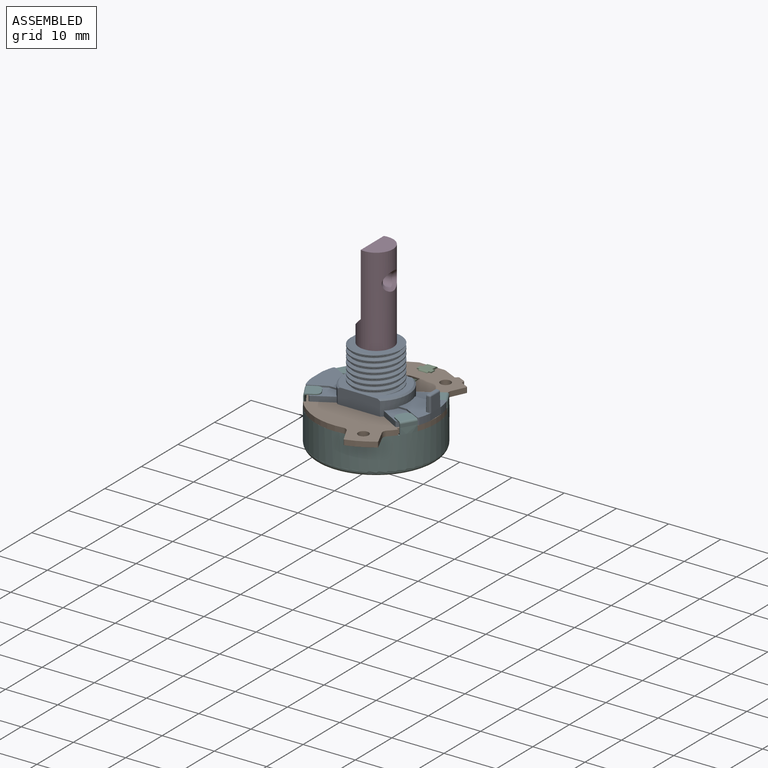
[diagram: assembled view]
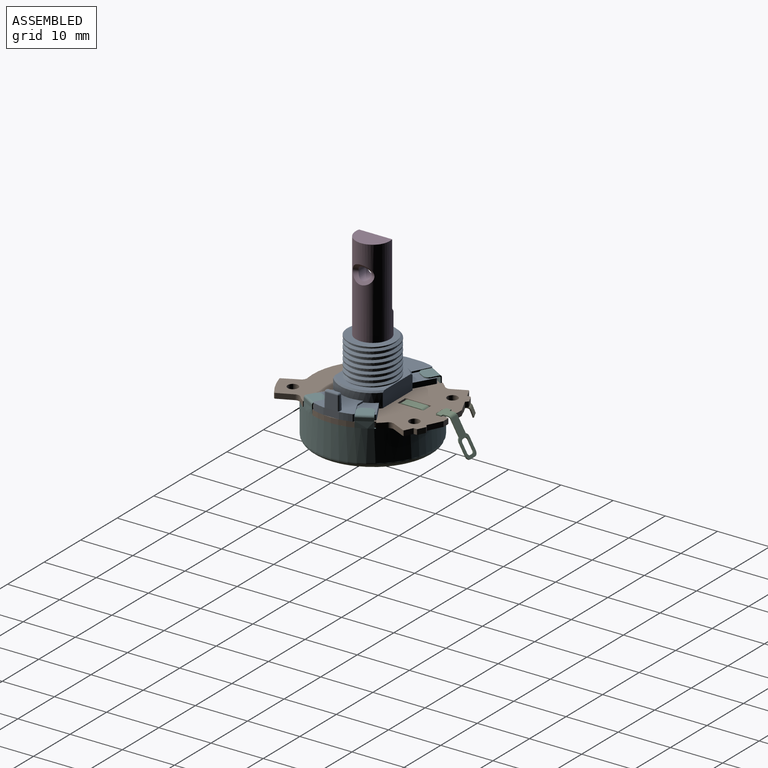
[diagram: assembled view, second angle]
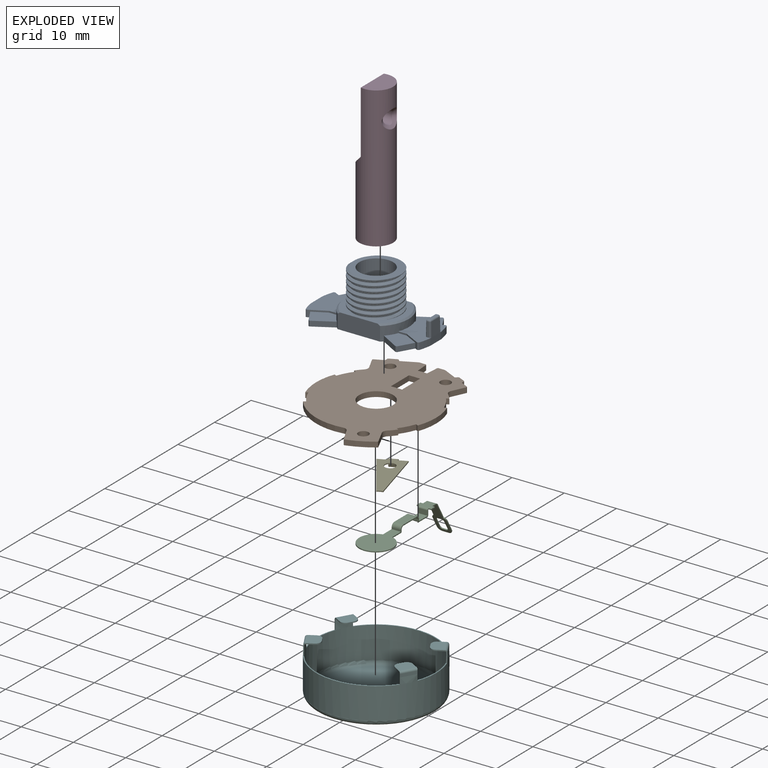
[diagram: exploded view]
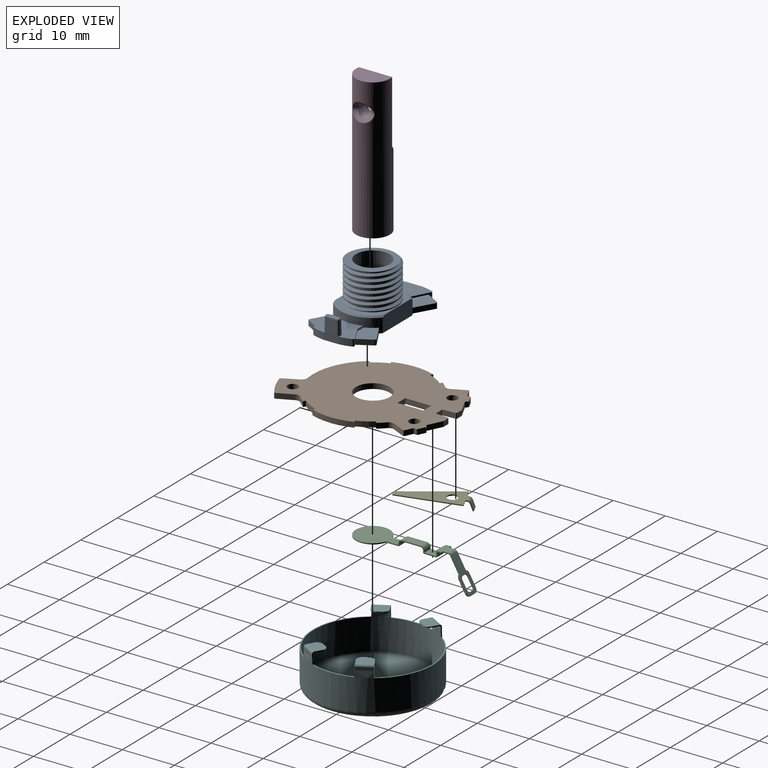
[diagram: exploded view, second angle]
ASSEMBLY  parts=6 mates=5
PART A: 71 faces, bbox 23.1x13.2x10.8 mm
  f0: plane 7.81x5.58mm, normal (0,0,1), area 27.8mm2, adj f27,f28,f29,f30,f31,f35,f36,f37
  f1: plane 12.16x9.76mm, normal (0,0,1), area 35.8mm2, adj f44,f45,f46,f47,f48,f50,f51,f52
  f2: plane 5.57x4.21mm, normal (0,0,1), area 13.8mm2, adj f9,f10,f11,f14,f17,f22,f23
  f3: plane 5.57x4.21mm, normal (0,0,1), area 13.8mm2, adj f4,f5,f12,f15,f18,f19,f23
  f4: plane 2.66x1.53mm, normal (-0.87,0.5,0), area 3.1mm2, adj f3,f5,f13,f19
  f5: plane 2.97x1.58mm, normal (0.47,0.88,0), area 1.5mm2, adj f3,f4,f13,f16,f18,f21
  f6: cylinder r=11.5mm len=2.21mm, axis (0,0,-1), area 3mm2, adj f7,f13,f16,f21
  f7: plane 2.97x1.3mm, normal (-1,0,0), area 3.9mm2, adj f6,f8,f13,f16
  f8: cylinder r=11.5mm len=2.21mm, axis (0,0,-1), area 3mm2, adj f7,f13,f16,f20
  f9: plane 2.97x1.58mm, normal (0.47,-0.88,0), area 1.5mm2, adj f2,f10,f13,f16,f17,f20
  f10: plane 2.66x1.53mm, normal (-0.87,-0.5,0), area 3.1mm2, adj f2,f9,f13,f22
  f11: plane 3.62x2.09mm, normal (0.5,-0.87,0), area 4.2mm2, adj f2,f13,f22,f23
  f12: plane 3.62x2.09mm, normal (0.5,0.87,0), area 4.2mm2, adj f3,f13,f19,f23
  f13: plane 22.81x12.93mm, normal (0,0,-1), area 189.3mm2, adj f4,f5,f6,f7,f8,f9,f10,f11
  f14: plane 1.53x0.3mm, normal (0,-1,0), area 0.5mm2, adj f2,f16,f17,f23
  f15: plane 1.53x0.3mm, normal (0,1,0), area 0.5mm2, adj f3,f16,f18,f23
  f16: plane 7.8x5.57mm, normal (0,0,1), area 30.6mm2, adj f5,f6,f7,f8,f9,f14,f15,f17
  f17: cylinder r=0.3mm len=0.3mm, axis (0,0,-1), area 0mm2, adj f2,f9,f14,f16
  f18: cylinder r=0.3mm len=0.3mm, axis (0,0,1), area 0mm2, adj f3,f5,f15,f16
  f19: cylinder r=0.3mm len=1mm, axis (0,0,1), area 0.5mm2, adj f3,f4,f12,f13
  f20: cylinder r=0.3mm len=1.3mm, axis (0,0,-1), area 0.7mm2, adj f8,f9,f13,f16
  f21: cylinder r=0.3mm len=1.3mm, axis (0,0,-1), area 0.7mm2, adj f5,f6,f13,f16
  f22: cylinder r=0.3mm len=1mm, axis (0,0,1), area 0.5mm2, adj f2,f10,f11,f13
  f23: cylinder r=6.25mm len=9.5mm, axis (0,0,-1), area 18.2mm2, adj f2,f3,f11,f12,f13,f14,f15,f16
  f24: plane 5.57x4.21mm, normal (0,0,1), area 13.8mm2, adj f31,f32,f33,f35,f37,f42,f43
  f25: plane 5.57x4.21mm, normal (0,0,1), area 13.8mm2, adj f26,f27,f34,f36,f38,f39,f43
  f26: plane 2.66x1.53mm, normal (0.87,0.5,0), area 3.1mm2, adj f13,f25,f27,f39
  f27: plane 2.97x1.58mm, normal (-0.47,0.88,0), area 1.5mm2, adj f0,f13,f25,f26,f38,f41
  f28: cylinder r=11.5mm len=2.21mm, axis (0,0,-1), area 3mm2, adj f0,f13,f29,f41
  f29: plane 2.97x1.3mm, normal (1,0,0), area 3.9mm2, adj f0,f13,f28,f30,f54
  f30: cylinder r=11.5mm len=2.21mm, axis (0,0,-1), area 3mm2, adj f0,f13,f29,f40
  f31: plane 2.97x1.58mm, normal (-0.47,-0.88,0), area 1.5mm2, adj f0,f13,f24,f32,f37,f40
  f32: plane 2.66x1.53mm, normal (0.87,-0.5,0), area 3.1mm2, adj f13,f24,f31,f42
  f33: plane 3.62x2.09mm, normal (-0.5,-0.87,0), area 4.2mm2, adj f13,f24,f42,f43
  f34: plane 3.62x2.09mm, normal (-0.5,0.87,0), area 4.2mm2, adj f13,f25,f39,f43
  f35: plane 1.53x0.3mm, normal (0,-1,0), area 0.5mm2, adj f0,f24,f37,f43
  f36: plane 1.53x0.3mm, normal (0,1,0), area 0.5mm2, adj f0,f25,f38,f43
  f37: cylinder r=0.3mm len=0.3mm, axis (0,0,-1), area 0mm2, adj f0,f24,f31,f35
  f38: cylinder r=0.3mm len=0.3mm, axis (0,0,1), area 0mm2, adj f0,f25,f27,f36
  f39: cylinder r=0.3mm len=1mm, axis (0,0,1), area 0.5mm2, adj f13,f25,f26,f34
  f40: cylinder r=0.3mm len=1.3mm, axis (0,0,-1), area 0.7mm2, adj f0,f13,f30,f31
  f41: cylinder r=0.3mm len=1.3mm, axis (0,0,-1), area 0.7mm2, adj f0,f13,f27,f28
  f42: cylinder r=0.3mm len=1mm, axis (0,0,1), area 0.5mm2, adj f13,f24,f32,f33
  f43: cylinder r=6.25mm len=9.5mm, axis (0,0,-1), area 18.2mm2, adj f0,f13,f24,f25,f33,f34,f35,f36
  f44: plane 8.14x3.01mm, normal (0,-1,0), area 24.2mm2, adj f1,f13,f23,f43,f46,f47
  f45: plane 8.14x3.01mm, normal (0,1,0), area 24.2mm2, adj f1,f13,f23,f43,f46,f47
  f46: cone r=5.95mm half-angle=45deg, axis (0,0,-1), area 4.6mm2, adj f1,f23,f44,f45
  f47: cone r=6.25mm half-angle=45deg, axis (0,0,-1), area 4.6mm2, adj f1,f43,f44,f45
  f48: cylinder r=4.75mm len=9.5mm, axis (0,0,1), area 32.1mm2, adj f1,f49,f50,f52
  f49: plane 9.29x9.26mm, normal (0,0,1), area 30.6mm2, adj f48,f50,f51,f52,f53
  f50: bspline ~11.39x9.87mm, area 114.4mm2, adj f1,f48,f49,f51
  f51: cylinder r=4.25mm len=8.5mm, axis (0,0,1), area 28.8mm2, adj f1,f49,f50,f52
  f52: bspline ~11.39x9.87mm, area 114.4mm2, adj f1,f48,f49,f51
  f53: cylinder r=3.25mm len=10mm, axis (0,0,-1), area 204.2mm2, adj f13,f49
  f54: plane 2.71x2.3mm, normal (1,0,0.02), area 6.1mm2, adj f29,f61,f67,f70
  f55: plane 2.71x0.4mm, normal (0,1,0.02), area 1mm2, adj f0,f64,f68,f70
  f56: plane 2.71x2.3mm, normal (-1,0,0.02), area 6.1mm2, adj f0,f59,f63,f64
  f57: plane 2.71x0.4mm, normal (0,-1,0.02), area 1mm2, adj f0,f59,f61,f62
  f58: plane 2.21x0.31mm, normal (0,0,1), area 0.7mm2, adj f62,f63,f67,f68
  f59: cylinder r=0.3mm len=2.71mm, axis (-0.02,-0.02,-1), area 1.3mm2, adj f0,f56,f57,f60
  f60: sphere r=0.3mm, area 0.1mm2, adj f59,f62,f63
  f61: cylinder r=0.3mm len=2.71mm, axis (0.02,-0.02,-1), area 1.3mm2, adj f0,f54,f57,f65
  f62: cylinder r=0.3mm len=0.31mm, axis (-1,0,0), area 0.1mm2, adj f57,f58,f60,f65
  f63: cylinder r=0.3mm len=2.21mm, axis (0,-1,0), area 1mm2, adj f56,f58,f60,f66
  f64: cylinder r=0.3mm len=2.71mm, axis (-0.02,0.02,-1), area 1.3mm2, adj f0,f55,f56,f66
  f65: sphere r=0.3mm, area 0.1mm2, adj f61,f62,f67
  f66: sphere r=0.3mm, area 0.2mm2, adj f63,f64,f68
  f67: cylinder r=0.3mm len=2.21mm, axis (0,-1,0), area 1mm2, adj f54,f58,f65,f69
  f68: cylinder r=0.3mm len=0.31mm, axis (-1,0,0), area 0.1mm2, adj f55,f58,f66,f69
  f69: sphere r=0.3mm, area 0.1mm2, adj f67,f68,f70
  f70: cylinder r=0.3mm len=2.71mm, axis (0.02,0.02,-1), area 1.3mm2, adj f0,f54,f55,f69
PART B: 64 faces, bbox 23x30.2x1 mm
  f0: plane 30.18x23mm, normal (0,0,1), area 440.1mm2, adj f2,f3,f4,f5,f6,f7,f8,f9
  f1: plane 30.18x23mm, normal (0,0,-1), area 440.1mm2, adj f2,f3,f4,f5,f6,f7,f8,f9
  f2: cylinder r=11.5mm len=8.06mm, axis (0,0,-1), area 8.2mm2, adj f0,f1,f56,f61
  f3: cylinder r=11.5mm len=8.06mm, axis (0,0,-1), area 8.2mm2, adj f0,f1,f53,f58
  f4: cylinder r=11.5mm len=1.32mm, axis (0,0,-1), area 1.8mm2, adj f0,f1,f47,f55
  f5: cylinder r=11.5mm len=1.19mm, axis (0,0,-1), area 1.6mm2, adj f0,f1,f49,f52
  f6: plane 4.95x1mm, normal (1,0,0), area 5mm2, adj f0,f1,f7,f34
  f7: plane 2.14x1mm, normal (0,-1,0), area 2.1mm2, adj f0,f1,f6,f8
  f8: plane 4.95x1mm, normal (-1,0,0), area 5mm2, adj f0,f1,f7,f34
  f9: plane 2.52x1.23mm, normal (-0.9,-0.44,0), area 2.8mm2, adj f0,f1,f40,f49
  f10: cylinder r=11.5mm len=10.77mm, axis (0,0,-1), area 12.2mm2, adj f0,f1,f48,f59
  f11: plane 2.85x1.45mm, normal (-0.89,-0.45,0), area 3.2mm2, adj f0,f1,f35,f48
  f12: cylinder r=15.5mm len=4.65mm, axis (0,0,-1), area 5.2mm2, adj f0,f1,f35,f36
  f13: plane 2.9x1.35mm, normal (0.91,0.42,0), area 3.2mm2, adj f0,f1,f36,f47
  f14: cylinder r=11.5mm len=1.32mm, axis (0,0,-1), area 1.8mm2, adj f0,f1,f50,f62
  f15: plane 2.5x1.17mm, normal (0.91,-0.42,0), area 2.8mm2, adj f0,f1,f41,f50
  f16: plane 1.35x1mm, normal (0.44,0.9,0), area 1.5mm2, adj f0,f1,f41,f42
  f17: plane 1x0.45mm, normal (1,-0.02,0), area 0.4mm2, adj f0,f1,f42,f43
  f18: plane 1.31x1mm, normal (0.43,0.91,0), area 1.4mm2, adj f0,f1,f43,f44
  f19: plane 1x0.33mm, normal (-0.63,0.78,0), area 0.4mm2, adj f0,f1,f44,f45
  f20: plane 2.67x1.3mm, normal (0.44,0.9,0), area 3mm2, adj f0,f1,f21,f45
  f21: plane 1.24x1mm, normal (0,1,0), area 1.2mm2, adj f0,f1,f20,f46
  f22: plane 2.44x1mm, normal (-1,0.07,0), area 2.4mm2, adj f0,f1,f23,f46
  f23: cylinder r=12.7mm len=1.77mm, axis (0,0,-1), area 1.8mm2, adj f0,f1,f22,f24
  f24: plane 2.44x1mm, normal (1,0.07,0), area 2.4mm2, adj f0,f1,f23,f37
  f25: plane 1.24x1mm, normal (0,1,0), area 1.2mm2, adj f0,f1,f26,f37
  f26: plane 2.78x1.36mm, normal (-0.44,0.9,0), area 3.1mm2, adj f0,f1,f25,f27
  f27: plane 1x0.43mm, normal (0.63,0.78,0), area 0.6mm2, adj f0,f1,f26,f38
  f28: plane 1.31x1mm, normal (-0.43,0.91,0), area 1.4mm2, adj f0,f1,f38,f39
  f29: plane 1x0.58mm, normal (-1,-0.02,0), area 0.6mm2, adj f0,f1,f33,f39
  f30: cylinder r=1mm len=2mm, axis (0,0,-1), area 6.3mm2, adj f0,f1
  f31: cylinder r=1mm len=2mm, axis (0,0,-1), area 6.3mm2, adj f0,f1
  f32: cylinder r=1mm len=2mm, axis (0,0,-1), area 6.3mm2, adj f0,f1
  f33: plane 1.68x1mm, normal (-0.44,0.9,0), area 1.9mm2, adj f0,f1,f29,f40
  f34: plane 2.14x1mm, normal (0,1,0), area 2.1mm2, adj f0,f1,f6,f8
  f35: cylinder r=0.2mm len=1mm, axis (0,0,-1), area 0.3mm2, adj f0,f1,f11,f12
  f36: cylinder r=0.2mm len=1mm, axis (0,0,-1), area 0.3mm2, adj f0,f1,f12,f13
  f37: cylinder r=0.2mm len=1mm, axis (0,0,-1), area 0.3mm2, adj f0,f1,f24,f25
  f38: cylinder r=0.2mm len=1mm, axis (0,0,-1), area 0.2mm2, adj f0,f1,f27,f28
  f39: cylinder r=0.2mm len=1mm, axis (0,0,-1), area 0.2mm2, adj f0,f1,f28,f29
  f40: cylinder r=0.2mm len=1mm, axis (0,0,1), area 0.3mm2, adj f0,f1,f9,f33
  f41: cylinder r=0.2mm len=1mm, axis (0,0,-1), area 0.3mm2, adj f0,f1,f15,f16
  f42: cylinder r=0.2mm len=1mm, axis (0,0,-1), area 0.2mm2, adj f0,f1,f16,f17
  f43: cylinder r=0.2mm len=1mm, axis (0,0,-1), area 0.2mm2, adj f0,f1,f17,f18
  f44: cylinder r=0.2mm len=1mm, axis (0,0,-1), area 0.2mm2, adj f0,f1,f18,f19
  f45: cylinder r=0.2mm len=1mm, axis (0,0,-1), area 0.2mm2, adj f0,f1,f19,f20
  f46: cylinder r=0.2mm len=1mm, axis (0,0,-1), area 0.3mm2, adj f0,f1,f21,f22
  f47: cylinder r=1mm len=1.15mm, axis (0,0,-1), area 1.2mm2, adj f0,f1,f4,f13
  f48: cylinder r=1mm len=1.04mm, axis (0,0,-1), area 1.2mm2, adj f0,f1,f10,f11
  f49: cylinder r=1mm len=1.15mm, axis (0,0,-1), area 1.2mm2, adj f0,f1,f5,f9
  f50: cylinder r=1mm len=1.15mm, axis (0,0,-1), area 1.2mm2, adj f0,f1,f14,f15
  f51: cylinder r=11mm len=2.96mm, axis (0,0,-1), area 3.4mm2, adj f0,f1,f52,f53
  f52: plane 1x0.44mm, normal (-0.5,-0.87,0), area 0.5mm2, adj f0,f1,f5,f51
  f53: plane 1x0.45mm, normal (0.47,0.88,0), area 0.5mm2, adj f0,f1,f3,f51
  f54: cylinder r=11mm len=2.96mm, axis (0,0,-1), area 3.4mm2, adj f0,f1,f55,f56
  f55: plane 1x0.44mm, normal (0.5,0.87,0), area 0.5mm2, adj f0,f1,f4,f54
  f56: plane 1x0.45mm, normal (-0.47,-0.88,0), area 0.5mm2, adj f0,f1,f2,f54
  f57: cylinder r=11mm len=2.96mm, axis (0,0,-1), area 3.4mm2, adj f0,f1,f58,f59
  f58: plane 1x0.45mm, normal (0.47,-0.88,0), area 0.5mm2, adj f0,f1,f3,f57
  f59: plane 1x0.44mm, normal (-0.5,0.87,0), area 0.5mm2, adj f0,f1,f10,f57
  f60: cylinder r=11mm len=2.96mm, axis (0,0,-1), area 3.4mm2, adj f0,f1,f61,f62
  f61: plane 1x0.45mm, normal (-0.47,0.88,0), area 0.5mm2, adj f0,f1,f2,f60
  f62: plane 1x0.44mm, normal (0.5,-0.87,0), area 0.5mm2, adj f0,f1,f14,f60
  f63: cylinder r=3.25mm len=6.5mm, axis (0,0,-1), area 20.4mm2, adj f0,f1
PART C: 82 faces, bbox 6.5x22.4x6.6 mm
  f0: plane 2.37x0.2mm, normal (1,0,0), area 0.5mm2, adj f2,f3,f4,f79
  f1: plane 2.37x0.2mm, normal (-1,0,0), area 0.5mm2, adj f2,f3,f4,f78
  f2: cylinder r=3.25mm len=6.5mm, axis (0,0,1), area 3.7mm2, adj f0,f1,f3,f4
  f3: plane 8.74x6.5mm, normal (0,0,1), area 37.2mm2, adj f0,f1,f2,f81
  f4: plane 8.74x6.5mm, normal (0,0,-1), area 37.2mm2, adj f0,f1,f2,f80
  f5: plane 0.29x0.2mm, normal (-1,0,0), area 0.1mm2, adj f7,f8,f75,f78
  f6: plane 0.29x0.2mm, normal (1,0,0), area 0.1mm2, adj f7,f8,f74,f79
  f7: plane 1.77x0.29mm, normal (0,-1,0), area 0.5mm2, adj f5,f6,f76,f81
  f8: plane 1.77x0.29mm, normal (0,1,0), area 0.5mm2, adj f5,f6,f77,f80
  f9: plane 3.55x0.2mm, normal (-1,0,0), area 0.7mm2, adj f11,f12,f71,f75
  f10: plane 3.55x0.2mm, normal (1,0,0), area 0.7mm2, adj f11,f12,f70,f74
  f11: plane 3.55x1.77mm, normal (0,0,1), area 6.3mm2, adj f9,f10,f72,f76
  f12: plane 3.55x1.77mm, normal (0,0,-1), area 6.3mm2, adj f9,f10,f73,f77
  f13: plane 0.29x0.2mm, normal (-1,0,0), area 0.1mm2, adj f15,f16,f67,f71
  f14: plane 0.29x0.2mm, normal (1,0,0), area 0.1mm2, adj f15,f16,f66,f70
  f15: plane 1.77x0.29mm, normal (0,1,0), area 0.5mm2, adj f13,f14,f69,f72
  f16: plane 1.77x0.29mm, normal (0,-1,0), area 0.5mm2, adj f13,f14,f68,f73
  f17: plane 2.29x0.2mm, normal (-1,0,0), area 0.5mm2, adj f19,f20,f63,f67
  f18: plane 2.29x0.2mm, normal (1,0,0), area 0.5mm2, adj f19,f20,f62,f66
  f19: plane 2.29x1.77mm, normal (0,0,1), area 4.1mm2, adj f17,f18,f65,f69
  f20: plane 2.29x1.77mm, normal (0,0,-1), area 4.1mm2, adj f17,f18,f64,f68
  f21: plane 0.89x0.2mm, normal (-1,0,0), area 0.2mm2, adj f23,f24,f58,f63
  f22: plane 0.89x0.2mm, normal (1,0,0), area 0.2mm2, adj f23,f24,f59,f62
  f23: plane 1.77x0.89mm, normal (0,-1,0), area 1.6mm2, adj f21,f22,f60,f65
  f24: plane 1.77x0.89mm, normal (0,1,0), area 1.6mm2, adj f21,f22,f61,f64
  f25: plane 0.5x0.2mm, normal (0,-1,0), area 0.1mm2, adj f26,f33,f34,f59
  f26: plane 1x0.2mm, normal (1,0,0), area 0.2mm2, adj f25,f27,f33,f34
  f27: plane 0.5x0.2mm, normal (0,1,0), area 0.1mm2, adj f26,f28,f33,f34
  f28: plane 0.94x0.2mm, normal (1,0,0), area 0.2mm2, adj f27,f33,f34,f55
  f29: plane 0.94x0.2mm, normal (-1,0,0), area 0.2mm2, adj f30,f33,f34,f54
  f30: plane 0.5x0.2mm, normal (0,1,0), area 0.1mm2, adj f29,f31,f33,f34
  f31: plane 1x0.2mm, normal (-1,0,0), area 0.2mm2, adj f30,f32,f33,f34
  f32: plane 0.5x0.2mm, normal (0,-1,0), area 0.1mm2, adj f31,f33,f34,f58
  f33: plane 2.77x1.94mm, normal (0,0,1), area 4.4mm2, adj f25,f26,f27,f28,f29,f30,f31,f32
  f34: plane 2.77x1.94mm, normal (0,0,-1), area 4.4mm2, adj f25,f26,f27,f28,f29,f30,f31,f32
  f35: cylinder r=0.5mm len=0.53mm, axis (0,0.87,0.5), area 0.2mm2, adj f36,f51,f52,f53
  f36: plane 1.66x1.07mm, normal (1,0,0), area 0.4mm2, adj f35,f37,f52,f53
  f37: cylinder r=0.5mm len=0.53mm, axis (0,0.87,0.5), area 0.2mm2, adj f36,f38,f52,f53
  f38: plane 0.57x0.17mm, normal (0,-0.5,0.87), area 0.1mm2, adj f37,f39,f52,f53
  f39: cylinder r=0.5mm len=0.53mm, axis (0,0.87,0.5), area 0.2mm2, adj f38,f40,f52,f53
  f40: plane 1.66x1.07mm, normal (-1,0,0), area 0.4mm2, adj f39,f41,f52,f53
  f41: cylinder r=0.5mm len=0.53mm, axis (0,0.87,0.5), area 0.2mm2, adj f40,f51,f52,f53
  f42: cylinder r=0.8mm len=0.74mm, axis (0,0.87,0.5), area 0.2mm2, adj f43,f50,f52,f53
  f43: plane 2.18x1.37mm, normal (1,0,0), area 0.5mm2, adj f42,f44,f52,f53
  f44: cylinder r=0.8mm len=0.8mm, axis (0,0.87,0.5), area 0.3mm2, adj f43,f45,f52,f53
  f45: plane 1.17x0.17mm, normal (0,0.5,-0.87), area 0.2mm2, adj f44,f46,f52,f53
  f46: cylinder r=0.8mm len=0.8mm, axis (0,0.87,0.5), area 0.3mm2, adj f45,f47,f52,f53
  f47: plane 2.18x1.37mm, normal (-1,0,0), area 0.5mm2, adj f46,f48,f52,f53
  f48: cylinder r=0.8mm len=0.74mm, axis (0,0.87,0.5), area 0.2mm2, adj f47,f49,f52,f53
  f49: plane 2.83x1.75mm, normal (-1,0,0), area 0.6mm2, adj f48,f52,f53,f54
  f50: plane 2.83x1.75mm, normal (1,0,0), area 0.6mm2, adj f42,f52,f53,f55
  f51: plane 0.57x0.17mm, normal (0,0.5,-0.87), area 0.1mm2, adj f35,f41,f52,f53
  f52: plane 6.15x3.55mm, normal (0,0.87,0.5), area 11.8mm2, adj f35,f36,f37,f38,f39,f40,f41,f42
  f53: plane 6.15x3.55mm, normal (0,-0.87,-0.5), area 11.8mm2, adj f35,f36,f37,f38,f39,f40,f41,f42
  f54: plane 0.61x0.45mm, normal (-1,0,0), area 0.1mm2, adj f29,f49,f56,f57
  f55: plane 0.61x0.45mm, normal (1,0,0), area 0.1mm2, adj f28,f50,f56,f57
  f56: cylinder r=0.7mm len=1.77mm, axis (-1,0,0), area 1.3mm2, adj f33,f52,f54,f55
  f57: cylinder r=0.5mm len=1.77mm, axis (-1,0,0), area 0.9mm2, adj f34,f53,f54,f55
  f58: plane 0.3x0.3mm, normal (-1,0,0), area 0.1mm2, adj f21,f32,f60,f61
  f59: plane 0.3x0.3mm, normal (1,0,0), area 0.1mm2, adj f22,f25,f60,f61
  f60: cylinder r=0.3mm len=1.77mm, axis (-1,0,0), area 0.8mm2, adj f23,f33,f58,f59
  f61: cylinder r=0.1mm len=1.77mm, axis (-1,0,0), area 0.3mm2, adj f24,f34,f58,f59
  f62: plane 0.21x0.21mm, normal (1,0,0), area 0mm2, adj f18,f22,f64,f65
  f63: plane 0.21x0.21mm, normal (-1,0,0), area 0mm2, adj f17,f21,f64,f65
  f64: cylinder r=0.21mm len=1.77mm, axis (1,0,0), area 0.6mm2, adj f20,f24,f62,f63
  f65: cylinder r=0.01mm len=1.77mm, axis (1,0,0), area 0mm2, adj f19,f23,f62,f63
  f66: plane 0.21x0.21mm, normal (1,0,0), area 0mm2, adj f14,f18,f68,f69
  f67: plane 0.21x0.21mm, normal (-1,0,0), area 0mm2, adj f13,f17,f68,f69
  f68: cylinder r=0.21mm len=1.77mm, axis (1,0,0), area 0.6mm2, adj f16,f20,f66,f67
  f69: cylinder r=0.01mm len=1.77mm, axis (1,0,0), area 0mm2, adj f15,f19,f66,f67
  f70: plane 0.7x0.7mm, normal (1,0,0), area 0.2mm2, adj f10,f14,f72,f73
  f71: plane 0.7x0.7mm, normal (-1,0,0), area 0.2mm2, adj f9,f13,f72,f73
  f72: cylinder r=0.7mm len=1.77mm, axis (1,0,0), area 1.9mm2, adj f11,f15,f70,f71
  f73: cylinder r=0.5mm len=1.77mm, axis (1,0,0), area 1.4mm2, adj f12,f16,f70,f71
  f74: plane 0.7x0.7mm, normal (1,0,0), area 0.2mm2, adj f6,f10,f76,f77
  f75: plane 0.7x0.7mm, normal (-1,0,0), area 0.2mm2, adj f5,f9,f76,f77
  f76: cylinder r=0.7mm len=1.77mm, axis (1,0,0), area 1.9mm2, adj f7,f11,f74,f75
  f77: cylinder r=0.5mm len=1.77mm, axis (1,0,0), area 1.4mm2, adj f8,f12,f74,f75
  f78: plane 0.21x0.21mm, normal (-1,0,0), area 0mm2, adj f1,f5,f80,f81
  f79: plane 0.21x0.21mm, normal (1,0,0), area 0mm2, adj f0,f6,f80,f81
  f80: cylinder r=0.21mm len=1.77mm, axis (-1,0,0), area 0.6mm2, adj f4,f8,f78,f79
  f81: cylinder r=0.01mm len=1.77mm, axis (-1,0,0), area 0mm2, adj f3,f7,f78,f79
PART D: 8 faces, bbox 6.5x6.5x27 mm
  f0: plane 6.5x4mm, normal (0,0,1), area 21.4mm2, adj f1,f4
  f1: cylinder r=3.25mm len=27mm, axis (0,0,-1), area 420.9mm2, adj f0,f2,f3,f4,f7
  f2: plane 6.5x6.5mm, normal (0,0,-1), area 33.2mm2, adj f1
  f3: plane 6.32x2.5mm, normal (-0.71,0,0.71), area 16.6mm2, adj f1,f4
  f4: plane 12x6.32mm, normal (-1,0,0), area 66.3mm2, adj f0,f1,f3,f6
  f5: cylinder r=1.25mm len=3mm, axis (-1,0,0), area 23.6mm2, adj f6,f7
  f6: cone r=1.25mm half-angle=45deg, axis (-1,0,0), area 6.7mm2, adj f4,f5
  f7: bspline ~4.14x3.5mm, area 8.4mm2, adj f1,f5
PART E: 19 faces, bbox 7.7x12.4x1.8 mm
  f0: plane 0.25x0.2mm, normal (-0.9,-0.44,0), area 0.1mm2, adj f1,f8,f9,f15
  f1: plane 1.55x0.75mm, normal (-0.44,0.9,0), area 0.3mm2, adj f0,f2,f8,f9
  f2: plane 9.66x6.74mm, normal (-0.82,-0.57,0), area 2.4mm2, adj f1,f3,f8,f9
  f3: cylinder r=3.25mm len=1.01mm, axis (0,0,1), area 0.2mm2, adj f2,f4,f8,f9
  f4: plane 11.45x3.11mm, normal (0.96,0.26,0), area 2.4mm2, adj f3,f5,f8,f9
  f5: plane 1.56x0.76mm, normal (-0.44,0.9,0), area 0.3mm2, adj f4,f6,f8,f9
  f6: plane 0.25x0.2mm, normal (0.9,0.44,0), area 0.1mm2, adj f5,f8,f9,f16
  f7: cylinder r=1mm len=2mm, axis (0,0,1), area 1.3mm2, adj f8,f9
  f8: plane 11.92x7.75mm, normal (0,0,1), area 33.8mm2, adj f0,f1,f2,f3,f4,f5,f6,f7
  f9: plane 11.92x7.75mm, normal (0,0,-1), area 33.8mm2, adj f0,f1,f2,f3,f4,f5,f6,f7
  f10: plane 1.61x0.91mm, normal (-0.15,0.31,-0.94), area 0.3mm2, adj f11,f12,f13,f14
  f11: plane 1.34x0.59mm, normal (-0.9,-0.44,0), area 0.3mm2, adj f10,f13,f14,f15
  f12: plane 1.34x0.59mm, normal (0.9,0.44,0), area 0.3mm2, adj f10,f13,f14,f16
  f13: plane 1.73x1.28mm, normal (-0.41,0.84,0.34), area 2.3mm2, adj f10,f11,f12,f17
  f14: plane 1.73x1.28mm, normal (0.41,-0.84,-0.34), area 2.3mm2, adj f10,f11,f12,f18
  f15: plane 0.59x0.53mm, normal (-0.9,-0.44,0), area 0.1mm2, adj f0,f11,f17,f18
  f16: plane 0.59x0.53mm, normal (0.9,0.44,0), area 0.1mm2, adj f6,f12,f17,f18
  f17: cylinder r=0.7mm len=1.82mm, axis (-0.9,-0.44,0), area 1.5mm2, adj f8,f13,f15,f16
  f18: cylinder r=0.5mm len=1.73mm, axis (-0.9,-0.44,0), area 1mm2, adj f9,f14,f15,f16
PART F: 86 faces, bbox 24.9x24.9x9.2 mm
  f0: plane 8.21x0.92mm, normal (0,0,1), area 1.6mm2, adj f4,f7,f44,f82
  f1: plane 18.78x4.83mm, normal (0,0,1), area 4.3mm2, adj f4,f7,f27,f84
  f2: plane 8.21x0.92mm, normal (0,0,1), area 1.6mm2, adj f4,f7,f25,f63
  f3: plane 18.78x4.83mm, normal (0,0,1), area 4.3mm2, adj f4,f7,f46,f65
  f4: cylinder r=11.5mm len=23mm, axis (0,0,-1), area 433.5mm2, adj f0,f1,f2,f3,f6,f28,f47,f66
  f5: plane 21x21mm, normal (0,0,-1), area 346.4mm2, adj f6
  f6: torus R=10.5mm, axis (0,0,1), area 109.9mm2, adj f4,f5
  f7: cylinder r=11.3mm len=22.6mm, axis (0,0,-1), area 426mm2, adj f0,f1,f2,f3,f9,f26,f45,f64
  f8: plane 21x21mm, normal (0,0,1), area 346.4mm2, adj f9
  f9: torus R=10.5mm, axis (0,0,1), area 86.9mm2, adj f7,f8
  f10: plane 0.93x0.53mm, normal (0.87,-0.5,0), area 0.2mm2, adj f13,f14,f15,f16
  f11: plane 1.26x0.73mm, normal (0.5,0.87,0), area 0.3mm2, adj f13,f14,f15,f22
  f12: plane 1.26x0.73mm, normal (-0.5,-0.87,0), area 0.3mm2, adj f13,f14,f16,f21
  f13: plane 3.52x3.29mm, normal (0,0,1), area 7.1mm2, adj f10,f11,f12,f15,f16,f23
  f14: plane 3.52x3.29mm, normal (0,0,-1), area 7.1mm2, adj f10,f11,f12,f15,f16,f24
  f15: cylinder r=1mm len=1.37mm, axis (0,0,1), area 0.3mm2, adj f10,f11,f13,f14
  f16: cylinder r=1mm len=1.37mm, axis (0,0,-1), area 0.3mm2, adj f10,f12,f13,f14
  f17: plane 0.6x0.17mm, normal (-0.5,-0.87,0), area 0.1mm2, adj f19,f20,f21,f25
  f18: plane 0.6x0.17mm, normal (0.5,0.87,0), area 0.1mm2, adj f19,f20,f22,f27
  f19: plane 2.66x1.53mm, normal (-0.87,0.5,0), area 1.8mm2, adj f17,f18,f23,f28
  f20: plane 2.66x1.53mm, normal (0.87,-0.5,0), area 1.8mm2, adj f17,f18,f24,f26
  f21: plane 0.4x0.35mm, normal (-0.5,-0.87,0), area 0.1mm2, adj f12,f17,f23,f24
  f22: plane 0.4x0.35mm, normal (0.5,0.87,0), area 0.1mm2, adj f11,f18,f23,f24
  f23: cylinder r=0.4mm len=2.86mm, axis (-0.5,-0.87,0), area 1.9mm2, adj f13,f19,f21,f22
  f24: cylinder r=0.2mm len=2.76mm, axis (-0.5,-0.87,0), area 1mm2, adj f14,f20,f21,f22
  f25: bspline ~1.2x0.21mm, area 0.2mm2, adj f2,f17,f26,f28
  f26: bspline ~2.75x1.53mm, area 3.7mm2, adj f7,f20,f25,f27
  f27: bspline ~1.2x0.2mm, area 0.2mm2, adj f1,f18,f26,f28
  f28: bspline ~2.74x1.53mm, area 3.7mm2, adj f4,f19,f25,f27
  f29: plane 0.93x0.53mm, normal (-0.87,0.5,0), area 0.2mm2, adj f32,f33,f34,f35
  f30: plane 1.26x0.73mm, normal (-0.5,-0.87,0), area 0.3mm2, adj f32,f33,f34,f41
  f31: plane 1.26x0.73mm, normal (0.5,0.87,0), area 0.3mm2, adj f32,f33,f35,f40
  f32: plane 3.52x3.29mm, normal (0,0,1), area 7.1mm2, adj f29,f30,f31,f34,f35,f42
  f33: plane 3.52x3.29mm, normal (0,0,-1), area 7.1mm2, adj f29,f30,f31,f34,f35,f43
  f34: cylinder r=1mm len=1.37mm, axis (0,0,1), area 0.3mm2, adj f29,f30,f32,f33
  f35: cylinder r=1mm len=1.37mm, axis (0,0,-1), area 0.3mm2, adj f29,f31,f32,f33
  f36: plane 0.6x0.17mm, normal (0.5,0.87,0), area 0.1mm2, adj f38,f39,f40,f44
  f37: plane 0.6x0.17mm, normal (-0.5,-0.87,0), area 0.1mm2, adj f38,f39,f41,f46
  f38: plane 2.66x1.53mm, normal (0.87,-0.5,0), area 1.8mm2, adj f36,f37,f42,f47
  f39: plane 2.66x1.53mm, normal (-0.87,0.5,0), area 1.8mm2, adj f36,f37,f43,f45
  f40: plane 0.4x0.35mm, normal (0.5,0.87,0), area 0.1mm2, adj f31,f36,f42,f43
  f41: plane 0.4x0.35mm, normal (-0.5,-0.87,0), area 0.1mm2, adj f30,f37,f42,f43
  f42: cylinder r=0.4mm len=2.86mm, axis (0.5,0.87,0), area 1.9mm2, adj f32,f38,f40,f41
  f43: cylinder r=0.2mm len=2.76mm, axis (0.5,0.87,0), area 1mm2, adj f33,f39,f40,f41
  f44: bspline ~1.2x0.21mm, area 0.2mm2, adj f0,f36,f45,f47
  f45: bspline ~2.75x1.53mm, area 3.7mm2, adj f7,f39,f44,f46
  f46: bspline ~1.2x0.2mm, area 0.2mm2, adj f3,f37,f45,f47
  f47: bspline ~2.74x1.53mm, area 3.7mm2, adj f4,f38,f44,f46
  f48: plane 0.93x0.53mm, normal (0.87,0.5,0), area 0.2mm2, adj f51,f52,f53,f54
  f49: plane 1.26x0.73mm, normal (0.5,-0.87,0), area 0.3mm2, adj f51,f52,f53,f60
  f50: plane 1.26x0.73mm, normal (-0.5,0.87,0), area 0.3mm2, adj f51,f52,f54,f59
  f51: plane 3.52x3.29mm, normal (0,0,1), area 7.1mm2, adj f48,f49,f50,f53,f54,f61
  f52: plane 3.52x3.29mm, normal (0,0,-1), area 7.1mm2, adj f48,f49,f50,f53,f54,f62
  f53: cylinder r=1mm len=1.37mm, axis (0,0,1), area 0.3mm2, adj f48,f49,f51,f52
  f54: cylinder r=1mm len=1.37mm, axis (0,0,-1), area 0.3mm2, adj f48,f50,f51,f52
  f55: plane 0.6x0.17mm, normal (-0.5,0.87,0), area 0.1mm2, adj f57,f58,f59,f63
  f56: plane 0.6x0.17mm, normal (0.5,-0.87,0), area 0.1mm2, adj f57,f58,f60,f65
  f57: plane 2.66x1.53mm, normal (-0.87,-0.5,0), area 1.8mm2, adj f55,f56,f61,f66
  f58: plane 2.66x1.53mm, normal (0.87,0.5,0), area 1.8mm2, adj f55,f56,f62,f64
  f59: plane 0.4x0.35mm, normal (-0.5,0.87,0), area 0.1mm2, adj f50,f55,f61,f62
  f60: plane 0.4x0.35mm, normal (0.5,-0.87,0), area 0.1mm2, adj f49,f56,f61,f62
  f61: cylinder r=0.4mm len=2.86mm, axis (-0.5,0.87,0), area 1.9mm2, adj f51,f57,f59,f60
  f62: cylinder r=0.2mm len=2.76mm, axis (-0.5,0.87,0), area 1mm2, adj f52,f58,f59,f60
  f63: bspline ~1.2x0.21mm, area 0.2mm2, adj f2,f55,f64,f66
  f64: bspline ~2.75x1.53mm, area 3.7mm2, adj f7,f58,f63,f65
  f65: bspline ~1.2x0.2mm, area 0.2mm2, adj f3,f56,f64,f66
  f66: bspline ~2.74x1.53mm, area 3.7mm2, adj f4,f57,f63,f65
  f67: plane 0.93x0.53mm, normal (-0.87,-0.5,0), area 0.2mm2, adj f70,f71,f72,f73
  f68: plane 1.26x0.73mm, normal (-0.5,0.87,0), area 0.3mm2, adj f70,f71,f72,f79
  f69: plane 1.26x0.73mm, normal (0.5,-0.87,0), area 0.3mm2, adj f70,f71,f73,f78
  f70: plane 3.52x3.29mm, normal (0,0,1), area 7.1mm2, adj f67,f68,f69,f72,f73,f80
  f71: plane 3.52x3.29mm, normal (0,0,-1), area 7.1mm2, adj f67,f68,f69,f72,f73,f81
  f72: cylinder r=1mm len=1.37mm, axis (0,0,1), area 0.3mm2, adj f67,f68,f70,f71
  f73: cylinder r=1mm len=1.37mm, axis (0,0,-1), area 0.3mm2, adj f67,f69,f70,f71
  f74: plane 0.6x0.17mm, normal (0.5,-0.87,0), area 0.1mm2, adj f76,f77,f78,f82
  f75: plane 0.6x0.17mm, normal (-0.5,0.87,0), area 0.1mm2, adj f76,f77,f79,f84
  f76: plane 2.66x1.53mm, normal (0.87,0.5,0), area 1.8mm2, adj f74,f75,f80,f85
  f77: plane 2.66x1.53mm, normal (-0.87,-0.5,0), area 1.8mm2, adj f74,f75,f81,f83
  f78: plane 0.4x0.35mm, normal (0.5,-0.87,0), area 0.1mm2, adj f69,f74,f80,f81
  f79: plane 0.4x0.35mm, normal (-0.5,0.87,0), area 0.1mm2, adj f68,f75,f80,f81
  f80: cylinder r=0.4mm len=2.86mm, axis (0.5,-0.87,0), area 1.9mm2, adj f70,f76,f78,f79
  f81: cylinder r=0.2mm len=2.76mm, axis (0.5,-0.87,0), area 1mm2, adj f71,f77,f78,f79
  f82: bspline ~1.2x0.21mm, area 0.2mm2, adj f0,f74,f83,f85
  f83: bspline ~2.75x1.53mm, area 3.7mm2, adj f7,f77,f82,f84
  f84: bspline ~1.2x0.2mm, area 0.2mm2, adj f1,f75,f83,f85
  f85: bspline ~2.74x1.53mm, area 3.7mm2, adj f4,f76,f82,f84
PLACE A at identity fixed
PLACE B at identity
PLACE C at identity fixed
PLACE D at identity
PLACE E at identity fixed
PLACE F at identity fixed
MATE fastened B.f31 <-> E.f7  axis (0,0,-1) through (-5.38,11.5,7)mm
MATE revolute D.f1 <-> B.f63  axis (0,0,-1) through (0,0,8)mm
MATE fastened B.f63 <-> F.f4  axis (0,0,-1) through (0,0,7)mm
MATE fastened B.f63 <-> A.f53  axis (0,0,-1) through (0,0,8)mm
MATE fastened B.f2 <-> C.f2  axis (0,0,-1) through (0,0,7)mm
